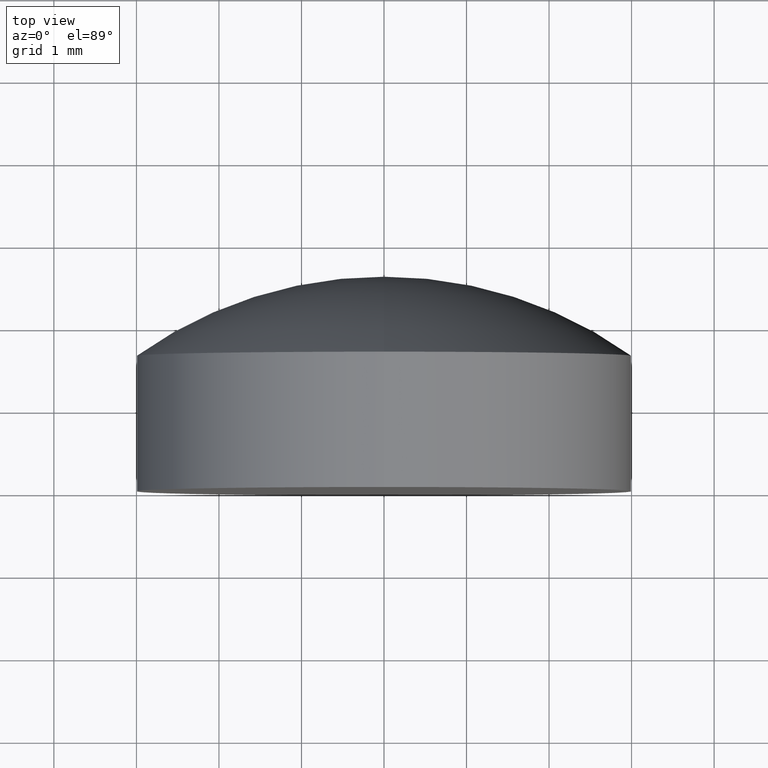
[diagram: clean part render]
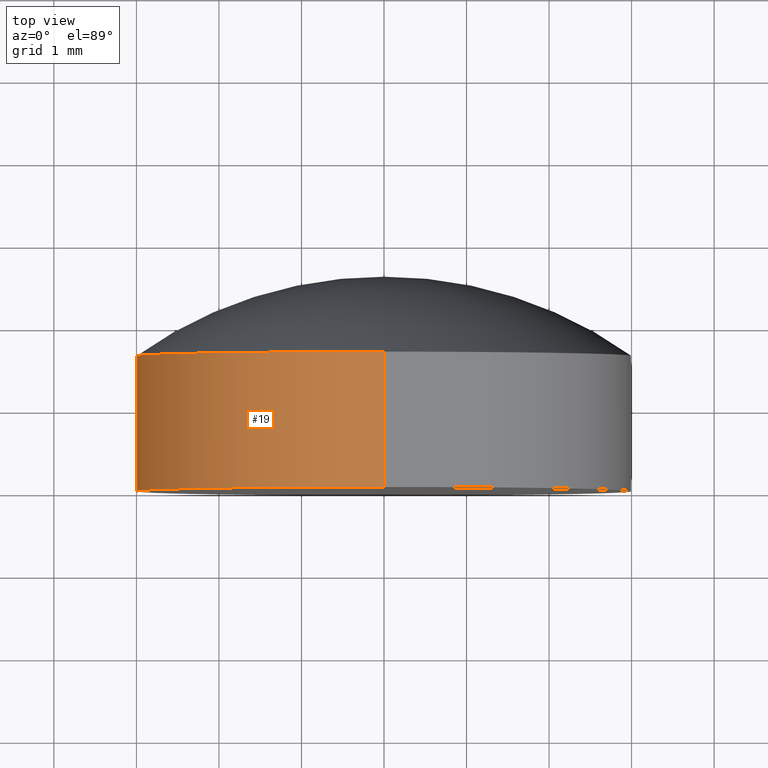
[diagram: same view with one face highlighted and labeled with its STEP entity id]
A machine part, top view. The second image highlights one B-rep face of the part: STEP entity #19.
In plain terms, the highlighted cylindrical surface (partial cylindrical patch) has radius 3 mm, axis along (-0, 1, -0).
Its self-contained STEP definition (entity closure, byte-faithful):
#10 = ORIENTED_EDGE ( 'NONE', *, *, #188, .T. ) ;
#14 = DIRECTION ( 'NONE',  ( 0.000000000000000000, 0.000000000000000000, 1.000000000000000000 ) ) ;
#19 = ADVANCED_FACE ( 'NONE', ( #77 ), #26, .T. ) ;
#22 = VERTEX_POINT ( 'NONE', #118 ) ;
#26 = CYLINDRICAL_SURFACE ( 'NONE', #161, 3.000000000000000000 ) ;
#28 = CARTESIAN_POINT ( 'NONE',  ( 0.000000000000000000, 1.639999999999999236, 3.000000000000000444 ) ) ;
#39 = VERTEX_POINT ( 'NONE', #28 ) ;
#40 = EDGE_LOOP ( 'NONE', ( #181, #10, #129, #160 ) ) ;
#47 = DIRECTION ( 'NONE',  ( -0.000000000000000000, 1.000000000000000000, -0.000000000000000000 ) ) ;
#49 = CARTESIAN_POINT ( 'NONE',  ( 3.673940397442060361E-16, 1.639999999999999236, -3.000000000000000444 ) ) ;
#53 = EDGE_CURVE ( 'NONE', #22, #39, #199, .T. ) ;
#63 = DIRECTION ( 'NONE',  ( -0.000000000000000000, 1.000000000000000000, -0.000000000000000000 ) ) ;
#67 = CIRCLE ( 'NONE', #137, 3.000000000000000000 ) ;
#73 = VERTEX_POINT ( 'NONE', #148 ) ;
#77 = FACE_OUTER_BOUND ( 'NONE', #40, .T. ) ;
#82 = AXIS2_PLACEMENT_3D ( 'NONE', #197, #47, #14 ) ;
#87 = DIRECTION ( 'NONE',  ( 0.000000000000000000, 0.000000000000000000, 1.000000000000000000 ) ) ;
#89 = CARTESIAN_POINT ( 'NONE',  ( 0.000000000000000000, 2.600000000000000089, 0.000000000000000000 ) ) ;
#91 = EDGE_CURVE ( 'NONE', #73, #162, #131, .T. ) ;
#118 = CARTESIAN_POINT ( 'NONE',  ( 0.000000000000000000, -4.336808689942017736E-16, 3.000000000000000000 ) ) ;
#121 = CARTESIAN_POINT ( 'NONE',  ( 3.673940397442059868E-16, 2.600000000000000089, -3.000000000000000000 ) ) ;
#129 = ORIENTED_EDGE ( 'NONE', *, *, #53, .T. ) ;
#131 = LINE ( 'NONE', #121, #193 ) ;
#137 = AXIS2_PLACEMENT_3D ( 'NONE', #186, #173, #171 ) ;
#144 = CIRCLE ( 'NONE', #82, 3.000000000000000000 ) ;
#147 = VECTOR ( 'NONE', #184, 1000.000000000000000 ) ;
#148 = CARTESIAN_POINT ( 'NONE',  ( 3.673940397442059868E-16, -4.336808689942017736E-16, -3.000000000000000000 ) ) ;
#160 = ORIENTED_EDGE ( 'NONE', *, *, #163, .F. ) ;
#161 = AXIS2_PLACEMENT_3D ( 'NONE', #89, #63, #87 ) ;
#162 = VERTEX_POINT ( 'NONE', #49 ) ;
#163 = EDGE_CURVE ( 'NONE', #162, #39, #67, .T. ) ;
#170 = CARTESIAN_POINT ( 'NONE',  ( 0.000000000000000000, 2.600000000000000089, 3.000000000000000000 ) ) ;
#171 = DIRECTION ( 'NONE',  ( 0.000000000000000000, 0.000000000000000000, 1.000000000000000000 ) ) ;
#173 = DIRECTION ( 'NONE',  ( -0.000000000000000000, 1.000000000000000000, -0.000000000000000000 ) ) ;
#181 = ORIENTED_EDGE ( 'NONE', *, *, #91, .F. ) ;
#184 = DIRECTION ( 'NONE',  ( -0.000000000000000000, 1.000000000000000000, -0.000000000000000000 ) ) ;
#186 = CARTESIAN_POINT ( 'NONE',  ( 0.000000000000000000, 1.639999999999999458, 0.000000000000000000 ) ) ;
#188 = EDGE_CURVE ( 'NONE', #73, #22, #144, .T. ) ;
#193 = VECTOR ( 'NONE', #200, 1000.000000000000000 ) ;
#197 = CARTESIAN_POINT ( 'NONE',  ( 0.000000000000000000, -4.336808689942017736E-16, 0.000000000000000000 ) ) ;
#199 = LINE ( 'NONE', #170, #147 ) ;
#200 = DIRECTION ( 'NONE',  ( -0.000000000000000000, 1.000000000000000000, -0.000000000000000000 ) ) ;